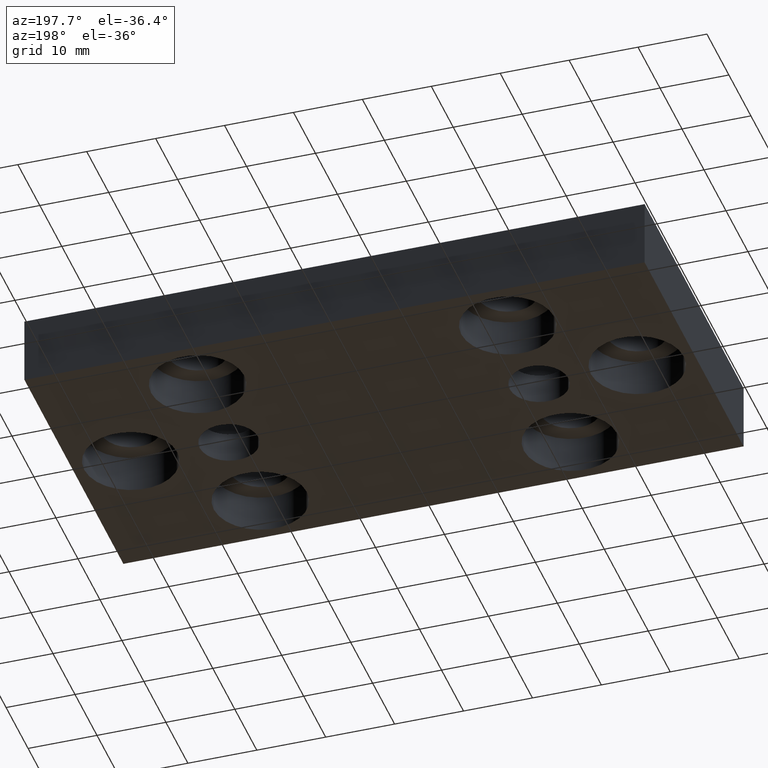
[diagram: clean part render]
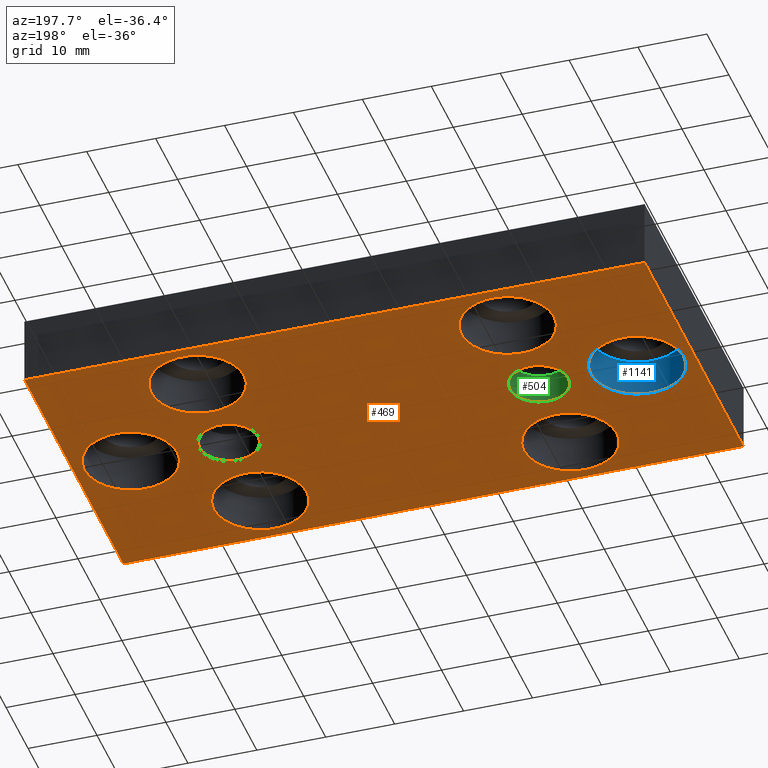
[diagram: same view with three faces highlighted in distinct colors, each labeled with its STEP entity id]
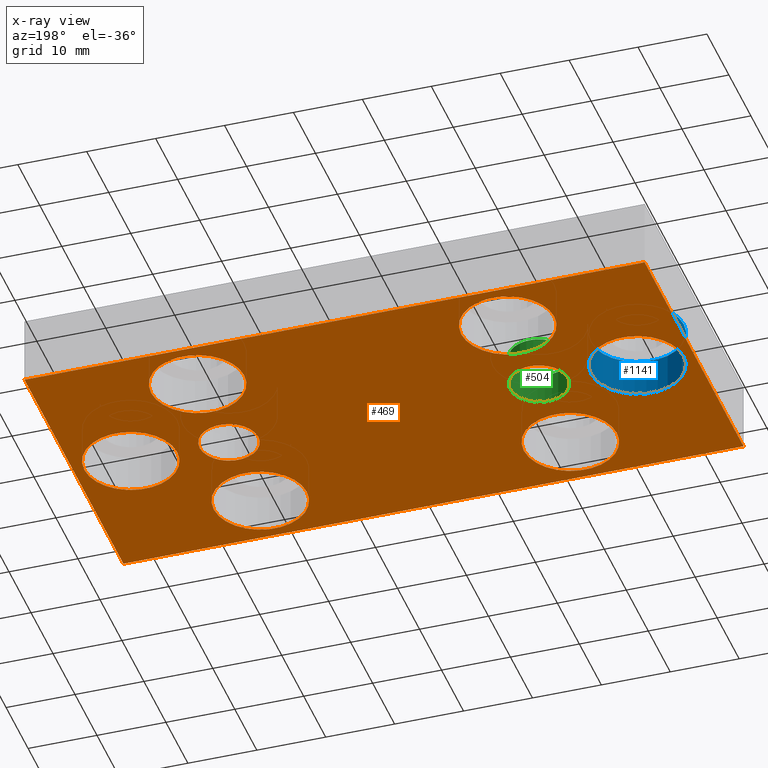
[diagram: x-ray of the same camera — body ghosted, the three highlighted faces saturated]
A machine part, auxiliary view with three faces highlighted in distinct colors.
The next image is the same camera in x-ray (body ghosted, the three faces saturated) — at least one of them is partly hidden behind the body in this view.
Their STEP definitions:

[orange] entity #469 — the highlighted planar face has unit normal (0, 0, 1).
#9=CARTESIAN_POINT('',(44.999999999819920,0.0,0.0));
#10=VERTEX_POINT('',#9);
#17=CARTESIAN_POINT('',(-44.999999999820375,0.0,0.0));
#18=VERTEX_POINT('',#17);
#19=CARTESIAN_POINT('',(44.999999999819920,0.0,0.0));
#20=DIRECTION('',(-1.0,0.0,0.0));
#21=VECTOR('',#20,89.999999999640295);
#22=LINE('',#19,#21);
#23=EDGE_CURVE('',#10,#18,#22,.T.);
#48=CARTESIAN_POINT('',(-44.999999999820375,-44.999999999820034,0.0));
#49=VERTEX_POINT('',#48);
#50=CARTESIAN_POINT('',(-44.999999999820375,0.0,0.0));
#51=DIRECTION('',(0.0,-1.0,0.0));
#52=VECTOR('',#51,44.999999999820034);
#53=LINE('',#50,#52);
#54=EDGE_CURVE('',#18,#49,#53,.T.);
#79=CARTESIAN_POINT('',(44.999999999819920,-44.999999999820034,0.0));
#80=VERTEX_POINT('',#79);
#81=CARTESIAN_POINT('',(-44.999999999820375,-44.999999999820034,0.0));
#82=DIRECTION('',(1.0,0.0,0.0));
#83=VECTOR('',#82,89.999999999640295);
#84=LINE('',#81,#83);
#85=EDGE_CURVE('',#49,#80,#84,.T.);
#110=CARTESIAN_POINT('',(44.999999999819920,-44.999999999820034,0.0));
#111=DIRECTION('',(0.0,1.0,0.0));
#112=VECTOR('',#111,44.999999999820034);
#113=LINE('',#110,#112);
#114=EDGE_CURVE('',#80,#10,#113,.T.);
#298=CARTESIAN_POINT('',(-54.000004731301033,-49.500004731538638,0.0));
#299=DIRECTION('',(0.0,0.0,1.0));
#300=DIRECTION('',(1.0,0.0,0.0));
#301=AXIS2_PLACEMENT_3D('',#298,#299,#300);
#302=PLANE('',#301);
#303=ORIENTED_EDGE('',*,*,#114,.F.);
#304=ORIENTED_EDGE('',*,*,#85,.F.);
#305=ORIENTED_EDGE('',*,*,#54,.F.);
#306=ORIENTED_EDGE('',*,*,#23,.F.);
#307=EDGE_LOOP('',(#303,#304,#305,#306));
#308=FACE_OUTER_BOUND('',#307,.T.);
#309=CARTESIAN_POINT('',(-18.249999999927240,-22.499999999910074,0.0));
#310=VERTEX_POINT('',#309);
#311=CARTESIAN_POINT('',(-26.749999999893589,-22.499999999910074,0.0));
#312=VERTEX_POINT('',#311);
#313=CARTESIAN_POINT('',(-22.499999999910415,-22.499999999910074,0.0));
#314=DIRECTION('',(0.0,6.123234E-017,1.0));
#315=DIRECTION('',(1.0,0.0,0.0));
#316=AXIS2_PLACEMENT_3D('',#313,#314,#315);
#317=CIRCLE('',#316,4.249999999983174);
#318=EDGE_CURVE('',#310,#312,#317,.T.);
#319=ORIENTED_EDGE('',*,*,#318,.T.);
#320=CARTESIAN_POINT('',(-22.499999999910415,-22.499999999910074,0.0));
#321=DIRECTION('',(0.0,6.123234E-017,1.0));
#322=DIRECTION('',(1.0,0.0,0.0));
#323=AXIS2_PLACEMENT_3D('',#320,#321,#322);
#324=CIRCLE('',#323,4.249999999983174);
#325=EDGE_CURVE('',#312,#310,#324,.T.);
#326=ORIENTED_EDGE('',*,*,#325,.T.);
#327=EDGE_LOOP('',(#319,#326));
#328=FACE_BOUND('',#327,.T.);
#329=CARTESIAN_POINT('',(26.749999999893134,-22.499999999910074,0.0));
#330=VERTEX_POINT('',#329);
#331=CARTESIAN_POINT('',(18.249999999926786,-22.499999999910074,0.0));
#332=VERTEX_POINT('',#331);
#333=CARTESIAN_POINT('',(22.499999999909960,-22.499999999910074,0.0));
#334=DIRECTION('',(0.0,6.123234E-017,1.0));
#335=DIRECTION('',(1.0,0.0,0.0));
#336=AXIS2_PLACEMENT_3D('',#333,#334,#335);
#337=CIRCLE('',#336,4.249999999983174);
#338=EDGE_CURVE('',#330,#332,#337,.T.);
#339=ORIENTED_EDGE('',*,*,#338,.T.);
#340=CARTESIAN_POINT('',(22.499999999909960,-22.499999999910074,0.0));
#341=DIRECTION('',(0.0,6.123234E-017,1.0));
#342=DIRECTION('',(1.0,0.0,0.0));
#343=AXIS2_PLACEMENT_3D('',#340,#341,#342);
#344=CIRCLE('',#343,4.249999999983174);
#345=EDGE_CURVE('',#332,#330,#344,.T.);
#346=ORIENTED_EDGE('',*,*,#345,.T.);
#347=EDGE_LOOP('',(#339,#346));
#348=FACE_BOUND('',#347,.T.);
#349=CARTESIAN_POINT('',(-29.249999999883585,-8.249999999967031,0.0));
#350=VERTEX_POINT('',#349);
#351=CARTESIAN_POINT('',(-15.749999999937245,-8.249999999967031,1.776357E-015));
#352=VERTEX_POINT('',#351);
#353=CARTESIAN_POINT('',(-22.499999999910415,-8.249999999967031,0.0));
#354=DIRECTION('',(0.0,-6.123234E-017,-1.0));
#355=DIRECTION('',(1.0,0.0,0.0));
#356=AXIS2_PLACEMENT_3D('',#353,#354,#355);
#357=CIRCLE('',#356,6.749999999973170);
#358=EDGE_CURVE('',#350,#352,#357,.T.);
#359=ORIENTED_EDGE('',*,*,#358,.F.);
#360=CARTESIAN_POINT('',(-22.499999999910415,-8.249999999967031,0.0));
#361=DIRECTION('',(0.0,-6.123234E-017,-1.0));
#362=DIRECTION('',(1.0,0.0,0.0));
#363=AXIS2_PLACEMENT_3D('',#360,#361,#362);
#364=CIRCLE('',#363,6.749999999973170);
#365=EDGE_CURVE('',#352,#350,#364,.T.);
#366=ORIENTED_EDGE('',*,*,#365,.F.);
#367=EDGE_LOOP('',(#359,#366));
#368=FACE_BOUND('',#367,.T.);
#369=CARTESIAN_POINT('',(-29.249999999883585,-36.749999999853003,0.0));
#370=VERTEX_POINT('',#369);
#371=CARTESIAN_POINT('',(-15.749999999937245,-36.749999999853003,1.776357E-015));
#372=VERTEX_POINT('',#371);
#373=CARTESIAN_POINT('',(-22.499999999910415,-36.749999999853003,0.0));
#374=DIRECTION('',(0.0,-6.123234E-017,-1.0));
#375=DIRECTION('',(1.0,0.0,0.0));
#376=AXIS2_PLACEMENT_3D('',#373,#374,#375);
#377=CIRCLE('',#376,6.749999999973170);
#378=EDGE_CURVE('',#370,#372,#377,.T.);
#379=ORIENTED_EDGE('',*,*,#378,.F.);
#380=CARTESIAN_POINT('',(-22.499999999910415,-36.749999999853003,0.0));
#381=DIRECTION('',(0.0,-6.123234E-017,-1.0));
#382=DIRECTION('',(1.0,0.0,0.0));
#383=AXIS2_PLACEMENT_3D('',#380,#381,#382);
#384=CIRCLE('',#383,6.749999999973170);
#385=EDGE_CURVE('',#372,#370,#384,.T.);
#386=ORIENTED_EDGE('',*,*,#385,.F.);
#387=EDGE_LOOP('',(#379,#386));
#388=FACE_BOUND('',#387,.T.);
#389=CARTESIAN_POINT('',(15.749999999936790,-36.749999999853003,0.0));
#390=VERTEX_POINT('',#389);
#391=CARTESIAN_POINT('',(29.249999999883130,-36.749999999853003,1.776357E-015));
#392=VERTEX_POINT('',#391);
#393=CARTESIAN_POINT('',(22.499999999909960,-36.749999999853003,0.0));
#394=DIRECTION('',(0.0,-6.123234E-017,-1.0));
#395=DIRECTION('',(1.0,0.0,0.0));
#396=AXIS2_PLACEMENT_3D('',#393,#394,#395);
#397=CIRCLE('',#396,6.749999999973170);
#398=EDGE_CURVE('',#390,#392,#397,.T.);
#399=ORIENTED_EDGE('',*,*,#398,.F.);
#400=CARTESIAN_POINT('',(22.499999999909960,-36.749999999853003,0.0));
#401=DIRECTION('',(0.0,-6.123234E-017,-1.0));
#402=DIRECTION('',(1.0,0.0,0.0));
#403=AXIS2_PLACEMENT_3D('',#400,#401,#402);
#404=CIRCLE('',#403,6.749999999973170);
#405=EDGE_CURVE('',#392,#390,#404,.T.);
#406=ORIENTED_EDGE('',*,*,#405,.F.);
#407=EDGE_LOOP('',(#399,#406));
#408=FACE_BOUND('',#407,.T.);
#409=CARTESIAN_POINT('',(15.749999999936790,-8.249999999967031,0.0));
#410=VERTEX_POINT('',#409);
#411=CARTESIAN_POINT('',(29.249999999883130,-8.249999999967031,1.776357E-015));
#412=VERTEX_POINT('',#411);
#413=CARTESIAN_POINT('',(22.499999999909960,-8.249999999967031,0.0));
#414=DIRECTION('',(0.0,-6.123234E-017,-1.0));
#415=DIRECTION('',(1.0,0.0,0.0));
#416=AXIS2_PLACEMENT_3D('',#413,#414,#415);
#417=CIRCLE('',#416,6.749999999973170);
#418=EDGE_CURVE('',#410,#412,#417,.T.);
#419=ORIENTED_EDGE('',*,*,#418,.F.);
#420=CARTESIAN_POINT('',(22.499999999909960,-8.249999999967031,0.0));
#421=DIRECTION('',(0.0,-6.123234E-017,-1.0));
#422=DIRECTION('',(1.0,0.0,0.0));
#423=AXIS2_PLACEMENT_3D('',#420,#421,#422);
#424=CIRCLE('',#423,6.749999999973170);
#425=EDGE_CURVE('',#412,#410,#424,.T.);
#426=ORIENTED_EDGE('',*,*,#425,.F.);
#427=EDGE_LOOP('',(#419,#426));
#428=FACE_BOUND('',#427,.T.);
#429=CARTESIAN_POINT('',(29.999999999879492,-22.499999999910074,0.0));
#430=VERTEX_POINT('',#429);
#431=CARTESIAN_POINT('',(43.499999999825832,-22.499999999910074,1.776357E-015));
#432=VERTEX_POINT('',#431);
#433=CARTESIAN_POINT('',(36.749999999852662,-22.499999999910074,0.0));
#434=DIRECTION('',(0.0,-6.123234E-017,-1.0));
#435=DIRECTION('',(1.0,0.0,0.0));
#436=AXIS2_PLACEMENT_3D('',#433,#434,#435);
#437=CIRCLE('',#436,6.749999999973170);
#438=EDGE_CURVE('',#430,#432,#437,.T.);
#439=ORIENTED_EDGE('',*,*,#438,.F.);
#440=CARTESIAN_POINT('',(36.749999999852662,-22.499999999910074,0.0));
#441=DIRECTION('',(0.0,-6.123234E-017,-1.0));
#442=DIRECTION('',(1.0,0.0,0.0));
#443=AXIS2_PLACEMENT_3D('',#440,#441,#442);
#444=CIRCLE('',#443,6.749999999973170);
#445=EDGE_CURVE('',#432,#430,#444,.T.);
#446=ORIENTED_EDGE('',*,*,#445,.F.);
#447=EDGE_LOOP('',(#439,#446));
#448=FACE_BOUND('',#447,.T.);
#449=CARTESIAN_POINT('',(-43.499999999826287,-22.499999999910074,0.0));
#450=VERTEX_POINT('',#449);
#451=CARTESIAN_POINT('',(-29.999999999879947,-22.499999999910074,1.776357E-015));
#452=VERTEX_POINT('',#451);
#453=CARTESIAN_POINT('',(-36.749999999853117,-22.499999999910074,0.0));
#454=DIRECTION('',(0.0,-6.123234E-017,-1.0));
#455=DIRECTION('',(1.0,0.0,0.0));
#456=AXIS2_PLACEMENT_3D('',#453,#454,#455);
#457=CIRCLE('',#456,6.749999999973170);
#458=EDGE_CURVE('',#450,#452,#457,.T.);
#459=ORIENTED_EDGE('',*,*,#458,.F.);
#460=CARTESIAN_POINT('',(-36.749999999853117,-22.499999999910074,0.0));
#461=DIRECTION('',(0.0,-6.123234E-017,-1.0));
#462=DIRECTION('',(1.0,0.0,0.0));
#463=AXIS2_PLACEMENT_3D('',#460,#461,#462);
#464=CIRCLE('',#463,6.749999999973170);
#465=EDGE_CURVE('',#452,#450,#464,.T.);
#466=ORIENTED_EDGE('',*,*,#465,.F.);
#467=EDGE_LOOP('',(#459,#466));
#468=FACE_BOUND('',#467,.T.);
#469=ADVANCED_FACE('',(#308,#328,#348,#368,#388,#408,#428,#448,#468),#302,.F.);

[blue] entity #1141 — the highlighted cylindrical surface (bore or boss wall) has radius 6.75 mm, axis along (0, -0, -1).
#449=CARTESIAN_POINT('',(-43.499999999826287,-22.499999999910074,0.0));
#450=VERTEX_POINT('',#449);
#451=CARTESIAN_POINT('',(-29.999999999879947,-22.499999999910074,1.776357E-015));
#452=VERTEX_POINT('',#451);
#453=CARTESIAN_POINT('',(-36.749999999853117,-22.499999999910074,0.0));
#454=DIRECTION('',(0.0,-6.123234E-017,-1.0));
#455=DIRECTION('',(1.0,0.0,0.0));
#456=AXIS2_PLACEMENT_3D('',#453,#454,#455);
#457=CIRCLE('',#456,6.749999999973170);
#458=EDGE_CURVE('',#450,#452,#457,.T.);
#460=CARTESIAN_POINT('',(-36.749999999853117,-22.499999999910074,0.0));
#461=DIRECTION('',(0.0,-6.123234E-017,-1.0));
#462=DIRECTION('',(1.0,0.0,0.0));
#463=AXIS2_PLACEMENT_3D('',#460,#461,#462);
#464=CIRCLE('',#463,6.749999999973170);
#465=EDGE_CURVE('',#452,#450,#464,.T.);
#1098=CARTESIAN_POINT('',(-29.999999999879947,-22.499999999910074,5.500000000000002));
#1099=VERTEX_POINT('',#1098);
#1100=CARTESIAN_POINT('',(-43.499999999826287,-22.499999999910074,5.500000000000002));
#1101=VERTEX_POINT('',#1100);
#1102=CARTESIAN_POINT('',(-36.749999999853117,-22.499999999910074,5.500000000000002));
#1103=DIRECTION('',(0.0,-6.123234E-017,-1.0));
#1104=DIRECTION('',(1.0,0.0,0.0));
#1105=AXIS2_PLACEMENT_3D('',#1102,#1103,#1104);
#1106=CIRCLE('',#1105,6.749999999973170);
#1107=EDGE_CURVE('',#1099,#1101,#1106,.T.);
#1109=CARTESIAN_POINT('',(-36.749999999853117,-22.499999999910074,5.500000000000002));
#1110=DIRECTION('',(0.0,-6.123234E-017,-1.0));
#1111=DIRECTION('',(1.0,0.0,0.0));
#1112=AXIS2_PLACEMENT_3D('',#1109,#1110,#1111);
#1113=CIRCLE('',#1112,6.749999999973170);
#1114=EDGE_CURVE('',#1101,#1099,#1113,.T.);
#1123=CARTESIAN_POINT('',(-36.749999999853117,-22.499999999910074,5.500000000000002));
#1124=DIRECTION('',(0.0,-6.123234E-017,-1.0));
#1125=DIRECTION('',(1.0,0.0,0.0));
#1126=AXIS2_PLACEMENT_3D('',#1123,#1124,#1125);
#1127=CYLINDRICAL_SURFACE('',#1126,6.749999999973170);
#1128=CARTESIAN_POINT('',(-29.999999999879947,-22.499999999910074,5.500000000000002));
#1129=DIRECTION('',(0.0,0.0,-1.0));
#1130=VECTOR('',#1129,5.500000000000000);
#1131=LINE('',#1128,#1130);
#1132=EDGE_CURVE('',#1099,#452,#1131,.T.);
#1133=ORIENTED_EDGE('',*,*,#1132,.T.);
#1134=ORIENTED_EDGE('',*,*,#465,.T.);
#1135=ORIENTED_EDGE('',*,*,#458,.T.);
#1136=ORIENTED_EDGE('',*,*,#1132,.F.);
#1137=ORIENTED_EDGE('',*,*,#1114,.F.);
#1138=ORIENTED_EDGE('',*,*,#1107,.F.);
#1139=EDGE_LOOP('',(#1133,#1134,#1135,#1136,#1137,#1138));
#1140=FACE_OUTER_BOUND('',#1139,.T.);
#1141=ADVANCED_FACE('',(#1140),#1127,.F.);

[green] entity #504 — the highlighted cylindrical surface (bore or boss wall) has radius 4.25 mm, axis along (0, 0, 1).
#309=CARTESIAN_POINT('',(-18.249999999927240,-22.499999999910074,0.0));
#310=VERTEX_POINT('',#309);
#311=CARTESIAN_POINT('',(-26.749999999893589,-22.499999999910074,0.0));
#312=VERTEX_POINT('',#311);
#313=CARTESIAN_POINT('',(-22.499999999910415,-22.499999999910074,0.0));
#314=DIRECTION('',(0.0,6.123234E-017,1.0));
#315=DIRECTION('',(1.0,0.0,0.0));
#316=AXIS2_PLACEMENT_3D('',#313,#314,#315);
#317=CIRCLE('',#316,4.249999999983174);
#318=EDGE_CURVE('',#310,#312,#317,.T.);
#320=CARTESIAN_POINT('',(-22.499999999910415,-22.499999999910074,0.0));
#321=DIRECTION('',(0.0,6.123234E-017,1.0));
#322=DIRECTION('',(1.0,0.0,0.0));
#323=AXIS2_PLACEMENT_3D('',#320,#321,#322);
#324=CIRCLE('',#323,4.249999999983174);
#325=EDGE_CURVE('',#312,#310,#324,.T.);
#470=CARTESIAN_POINT('',(-22.499999999910415,-22.499999999910074,-1.000016784667976));
#471=DIRECTION('',(0.0,6.123234E-017,1.0));
#472=DIRECTION('',(1.0,0.0,0.0));
#473=AXIS2_PLACEMENT_3D('',#470,#471,#472);
#474=CYLINDRICAL_SURFACE('',#473,4.249999999983174);
#475=CARTESIAN_POINT('',(-18.249999999927240,-22.499999999910074,4.499999999999998));
#476=VERTEX_POINT('',#475);
#477=CARTESIAN_POINT('',(-18.249999999927240,-22.499999999910074,0.0));
#478=DIRECTION('',(0.0,0.0,1.0));
#479=VECTOR('',#478,4.499999999999998);
#480=LINE('',#477,#479);
#481=EDGE_CURVE('',#310,#476,#480,.T.);
#482=ORIENTED_EDGE('',*,*,#481,.F.);
#483=ORIENTED_EDGE('',*,*,#325,.F.);
#484=ORIENTED_EDGE('',*,*,#318,.F.);
#485=ORIENTED_EDGE('',*,*,#481,.T.);
#486=CARTESIAN_POINT('',(-26.749999999893589,-22.499999999910074,4.499999999999998));
#487=VERTEX_POINT('',#486);
#488=CARTESIAN_POINT('',(-22.499999999910415,-22.499999999910074,4.499999999999998));
#489=DIRECTION('',(0.0,6.123234E-017,1.0));
#490=DIRECTION('',(1.0,0.0,0.0));
#491=AXIS2_PLACEMENT_3D('',#488,#489,#490);
#492=CIRCLE('',#491,4.249999999983174);
#493=EDGE_CURVE('',#476,#487,#492,.T.);
#494=ORIENTED_EDGE('',*,*,#493,.T.);
#495=CARTESIAN_POINT('',(-22.499999999910415,-22.499999999910074,4.499999999999998));
#496=DIRECTION('',(0.0,6.123234E-017,1.0));
#497=DIRECTION('',(1.0,0.0,0.0));
#498=AXIS2_PLACEMENT_3D('',#495,#496,#497);
#499=CIRCLE('',#498,4.249999999983174);
#500=EDGE_CURVE('',#487,#476,#499,.T.);
#501=ORIENTED_EDGE('',*,*,#500,.T.);
#502=EDGE_LOOP('',(#482,#483,#484,#485,#494,#501));
#503=FACE_OUTER_BOUND('',#502,.T.);
#504=ADVANCED_FACE('',(#503),#474,.F.);